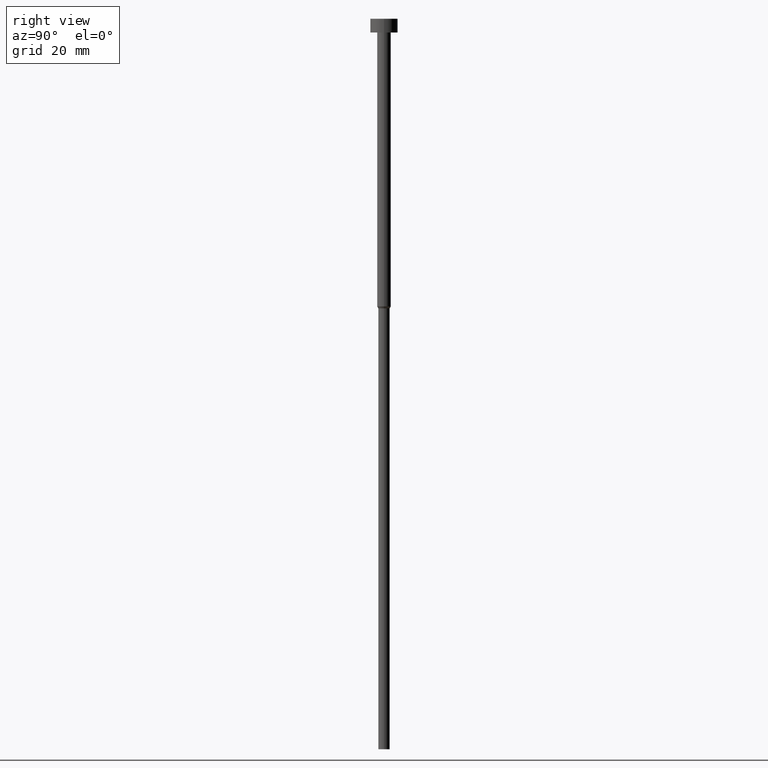
[diagram: clean part render]
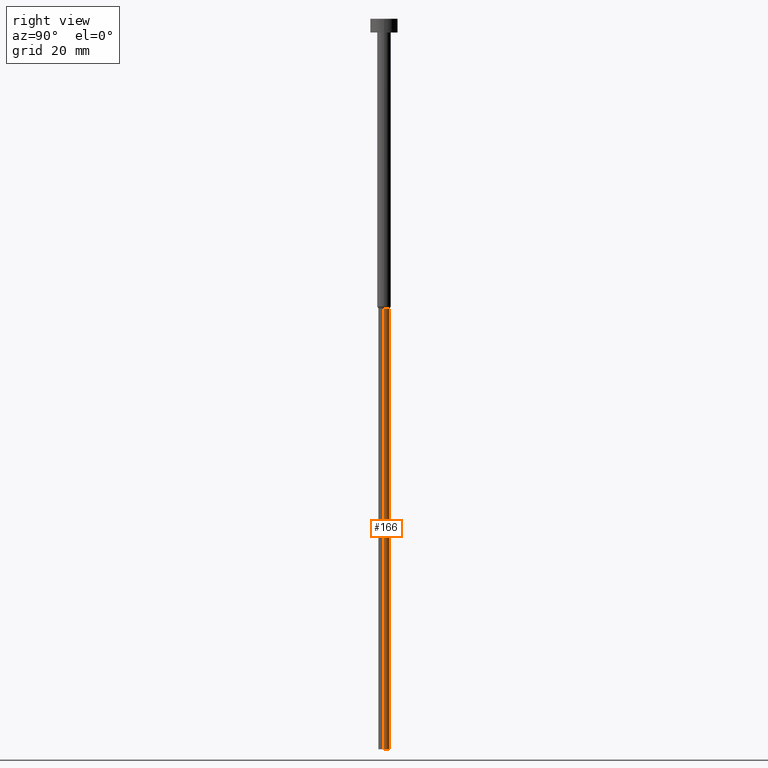
[diagram: same view with one face highlighted and labeled with its STEP entity id]
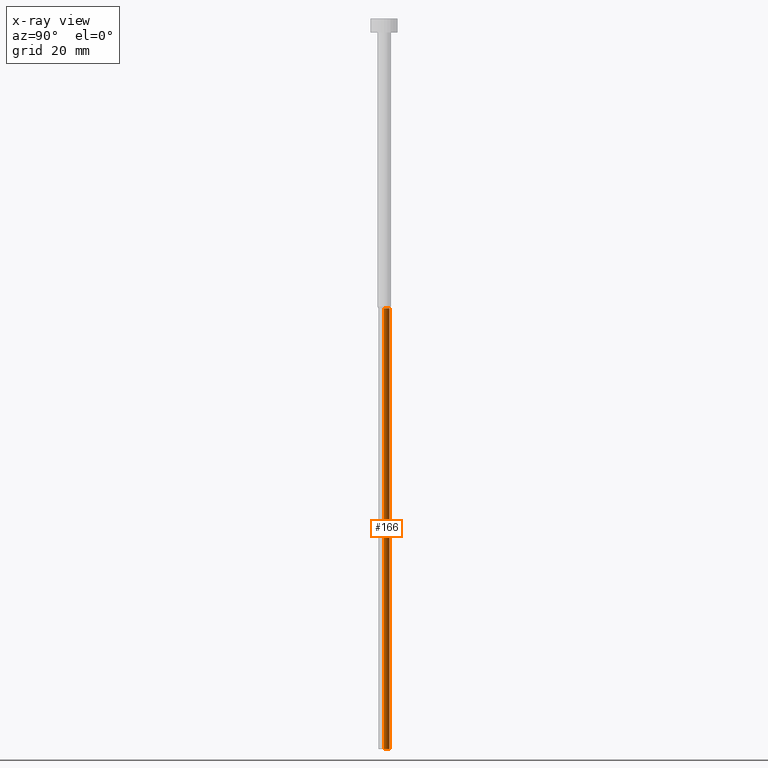
[diagram: x-ray of the same camera — body ghosted, the highlighted face saturated]
A machine part, right view. The second image highlights one B-rep face of the part: STEP entity #166.
The next image is the same camera in x-ray: the body ghosted, the highlighted face saturated — about 0% of this face is hidden behind the body in this view.
In plain terms, the highlighted cylindrical surface (edge-blend (fillet) strip) has radius 1.25 mm, axis along (-0, -0, 1).
Its self-contained STEP definition (entity closure, byte-faithful):
#1 = EDGE_CURVE ( 'NONE', #96, #261, #192, .T. ) ;
#5 = DIRECTION ( 'NONE',  ( -0.000000000000000000, -0.000000000000000000, 1.000000000000000000 ) ) ;
#45 = DIRECTION ( 'NONE',  ( -0.000000000000000000, -0.000000000000000000, 1.000000000000000000 ) ) ;
#61 = CYLINDRICAL_SURFACE ( 'NONE', #245, 1.250000000000000000 ) ;
#64 = ORIENTED_EDGE ( 'NONE', *, *, #65, .T. ) ;
#65 = EDGE_CURVE ( 'NONE', #151, #125, #339, .T. ) ;
#75 = VECTOR ( 'NONE', #300, 1000.000000000000000 ) ;
#87 = LINE ( 'NONE', #196, #75 ) ;
#96 = VERTEX_POINT ( 'NONE', #320 ) ;
#107 = VECTOR ( 'NONE', #5, 1000.000000000000000 ) ;
#125 = VERTEX_POINT ( 'NONE', #353 ) ;
#141 = ORIENTED_EDGE ( 'NONE', *, *, #334, .F. ) ;
#151 = VERTEX_POINT ( 'NONE', #197 ) ;
#156 = AXIS2_PLACEMENT_3D ( 'NONE', #219, #45, #324 ) ;
#160 = ORIENTED_EDGE ( 'NONE', *, *, #1, .F. ) ;
#166 = ADVANCED_FACE ( 'NONE', ( #210 ), #61, .T. ) ;
#191 = CARTESIAN_POINT ( 'NONE',  ( 0.000000000000000000, 0.000000000000000000, -63.43301270189222407 ) ) ;
#192 = CIRCLE ( 'NONE', #325, 1.250000000000000000 ) ;
#196 = CARTESIAN_POINT ( 'NONE',  ( 1.250000000000000000, 0.000000000000000000, 0.000000000000000000 ) ) ;
#197 = CARTESIAN_POINT ( 'NONE',  ( 1.250000000000000000, 0.000000000000000000, -160.0000000000000000 ) ) ;
#201 = ORIENTED_EDGE ( 'NONE', *, *, #218, .T. ) ;
#210 = FACE_OUTER_BOUND ( 'NONE', #276, .T. ) ;
#218 = EDGE_CURVE ( 'NONE', #125, #261, #349, .T. ) ;
#219 = CARTESIAN_POINT ( 'NONE',  ( 0.000000000000000000, 0.000000000000000000, -160.0000000000000000 ) ) ;
#222 = DIRECTION ( 'NONE',  ( 1.000000000000000000, 0.000000000000000000, 0.000000000000000000 ) ) ;
#231 = CARTESIAN_POINT ( 'NONE',  ( -1.250000000000000000, 1.530808498934191571E-16, -63.43301270189222407 ) ) ;
#233 = DIRECTION ( 'NONE',  ( -0.000000000000000000, -0.000000000000000000, 1.000000000000000000 ) ) ;
#245 = AXIS2_PLACEMENT_3D ( 'NONE', #341, #233, #335 ) ;
#254 = CARTESIAN_POINT ( 'NONE',  ( -1.250000000000000000, 1.530808498934191571E-16, 0.000000000000000000 ) ) ;
#261 = VERTEX_POINT ( 'NONE', #231 ) ;
#268 = DIRECTION ( 'NONE',  ( -0.000000000000000000, -0.000000000000000000, 1.000000000000000000 ) ) ;
#276 = EDGE_LOOP ( 'NONE', ( #64, #201, #160, #141 ) ) ;
#300 = DIRECTION ( 'NONE',  ( -0.000000000000000000, -0.000000000000000000, 1.000000000000000000 ) ) ;
#320 = CARTESIAN_POINT ( 'NONE',  ( 1.250000000000000000, 0.000000000000000000, -63.43301270189222407 ) ) ;
#324 = DIRECTION ( 'NONE',  ( 1.000000000000000000, 0.000000000000000000, 0.000000000000000000 ) ) ;
#325 = AXIS2_PLACEMENT_3D ( 'NONE', #191, #268, #222 ) ;
#334 = EDGE_CURVE ( 'NONE', #151, #96, #87, .T. ) ;
#335 = DIRECTION ( 'NONE',  ( 1.000000000000000000, 0.000000000000000000, 0.000000000000000000 ) ) ;
#339 = CIRCLE ( 'NONE', #156, 1.250000000000000000 ) ;
#341 = CARTESIAN_POINT ( 'NONE',  ( 0.000000000000000000, 0.000000000000000000, 0.000000000000000000 ) ) ;
#349 = LINE ( 'NONE', #254, #107 ) ;
#353 = CARTESIAN_POINT ( 'NONE',  ( -1.250000000000000000, 1.530808498934191571E-16, -160.0000000000000000 ) ) ;